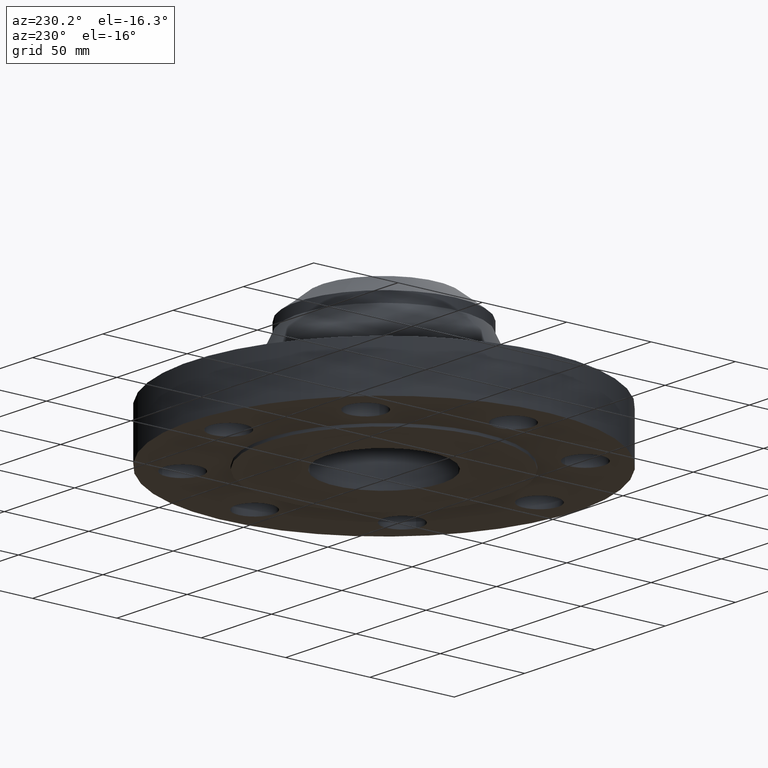
[diagram: clean part render]
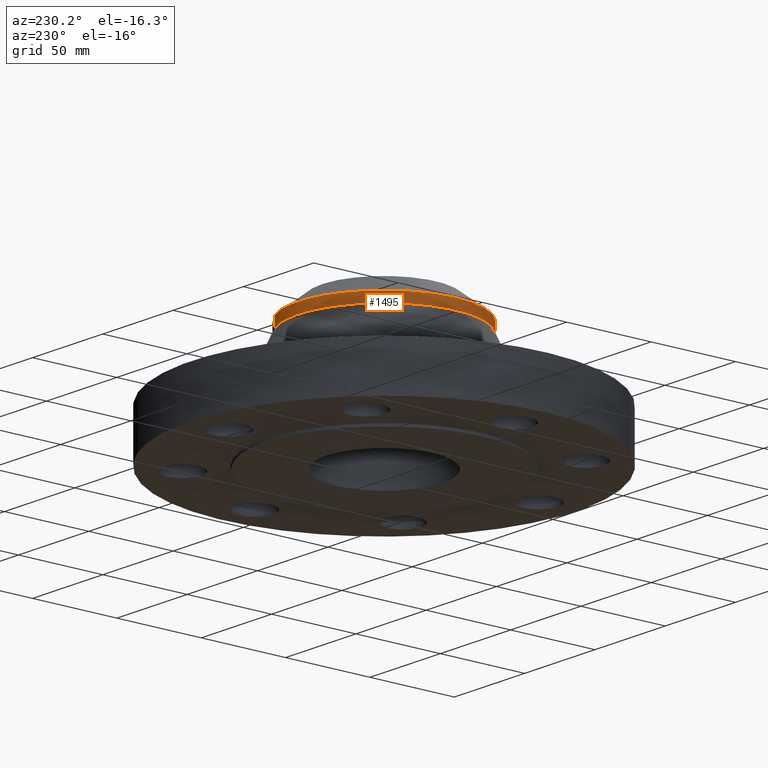
[diagram: same view with one face highlighted and labeled with its STEP entity id]
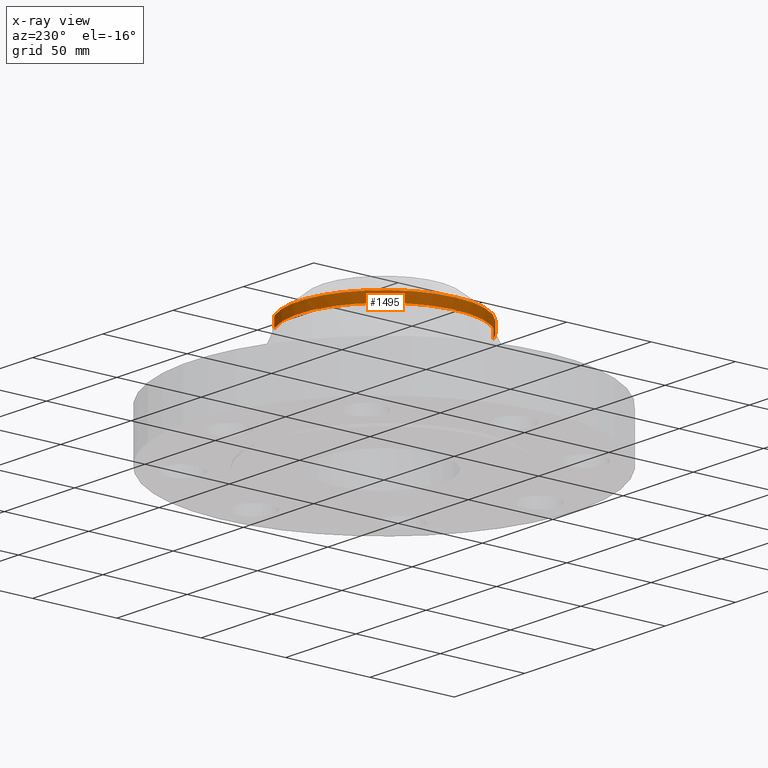
[diagram: x-ray of the same camera — body ghosted, the highlighted face saturated]
A machine part, auxiliary view. The second image highlights one B-rep face of the part: STEP entity #1495.
The next image is the same camera in x-ray: the body ghosted, the highlighted face saturated — about 0% of this face is hidden behind the body in this view.
In plain terms, the highlighted cylindrical surface (partial cylindrical patch) has radius 50.8 mm, axis along (-0, 0, -1).
Its self-contained STEP definition (entity closure, byte-faithful):
#1156=AXIS2_PLACEMENT_3D('Circle Axis2P3D',#1154,#1155,$) ;
#1460=AXIS2_PLACEMENT_3D('Cylinder Axis2P3D',#1457,#1458,#1459) ;
#1478=AXIS2_PLACEMENT_3D('Circle Axis2P3D',#1476,#1477,$) ;
#1485=AXIS2_PLACEMENT_3D('Circle Axis2P3D',#1483,#1484,$) ;
#1151=CARTESIAN_POINT('Vertex',(-0.958851077212,-1.75516512379,2.46617901109)) ;
#1154=CARTESIAN_POINT('Axis2P3D Location',(0.,0.,2.46617901109)) ;
#1158=CARTESIAN_POINT('Vertex',(0.958851077214,1.75516512379,2.46617901109)) ;
#1457=CARTESIAN_POINT('Axis2P3D Location',(0.,0.,1.53375000001)) ;
#1462=CARTESIAN_POINT('Line Origine',(0.958851077214,1.75516512379,2.58428924729)) ;
#1466=CARTESIAN_POINT('Vertex',(0.958851077214,1.75516512379,2.70239948351)) ;
#1469=CARTESIAN_POINT('Line Origine',(-0.958851077214,-1.75516512379,2.58428924729)) ;
#1473=CARTESIAN_POINT('Vertex',(-0.958851077212,-1.75516512379,2.70239948351)) ;
#1476=CARTESIAN_POINT('Axis2P3D Location',(0.,0.,2.70239948351)) ;
#1480=CARTESIAN_POINT('Vertex',(-0.958851077212,1.75516512379,2.70239948351)) ;
#1483=CARTESIAN_POINT('Axis2P3D Location',(0.,0.,2.70239948351)) ;
#1155=DIRECTION('Axis2P3D Direction',(-0.,0.,-0.0393700787402)) ;
#1458=DIRECTION('Axis2P3D Direction',(-0.,0.,-0.0393700787402)) ;
#1459=DIRECTION('Axis2P3D XDirection',(-0.0188750212049,-0.0345504945626,0.)) ;
#1463=DIRECTION('Vector Direction',(0.,0.,-0.0393700787402)) ;
#1470=DIRECTION('Vector Direction',(0.,0.,-0.0393700787402)) ;
#1477=DIRECTION('Axis2P3D Direction',(-0.,0.,-0.0393700787402)) ;
#1484=DIRECTION('Axis2P3D Direction',(-0.,0.,-0.0393700787402)) ;
#1464=VECTOR('Line Direction',#1463,0.0393700787402) ;
#1471=VECTOR('Line Direction',#1470,0.0393700787402) ;
#1489=ORIENTED_EDGE('',*,*,#1468,.F.) ;
#1490=ORIENTED_EDGE('',*,*,#1160,.F.) ;
#1491=ORIENTED_EDGE('',*,*,#1475,.T.) ;
#1492=ORIENTED_EDGE('',*,*,#1482,.F.) ;
#1493=ORIENTED_EDGE('',*,*,#1487,.T.) ;
#1495=ADVANCED_FACE('PartBody',(#1494),#1461,.T.) ;
#1157=CIRCLE('generated circle',#1156,2.00000000001) ;
#1479=CIRCLE('generated circle',#1478,2.00000000001) ;
#1486=CIRCLE('generated circle',#1485,2.00000000001) ;
#1461=CYLINDRICAL_SURFACE('generated cylinder',#1460,2.00000000001) ;
#1160=EDGE_CURVE('',#1152,#1159,#1157,.T.) ;
#1468=EDGE_CURVE('',#1159,#1467,#1465,.F.) ;
#1475=EDGE_CURVE('',#1152,#1474,#1472,.F.) ;
#1482=EDGE_CURVE('',#1481,#1474,#1479,.F.) ;
#1487=EDGE_CURVE('',#1481,#1467,#1486,.T.) ;
#1488=EDGE_LOOP('',(#1489,#1490,#1491,#1492,#1493)) ;
#1494=FACE_OUTER_BOUND('',#1488,.T.) ;
#1465=LINE('Line',#1462,#1464) ;
#1472=LINE('Line',#1469,#1471) ;
#1152=VERTEX_POINT('',#1151) ;
#1159=VERTEX_POINT('',#1158) ;
#1467=VERTEX_POINT('',#1466) ;
#1474=VERTEX_POINT('',#1473) ;
#1481=VERTEX_POINT('',#1480) ;